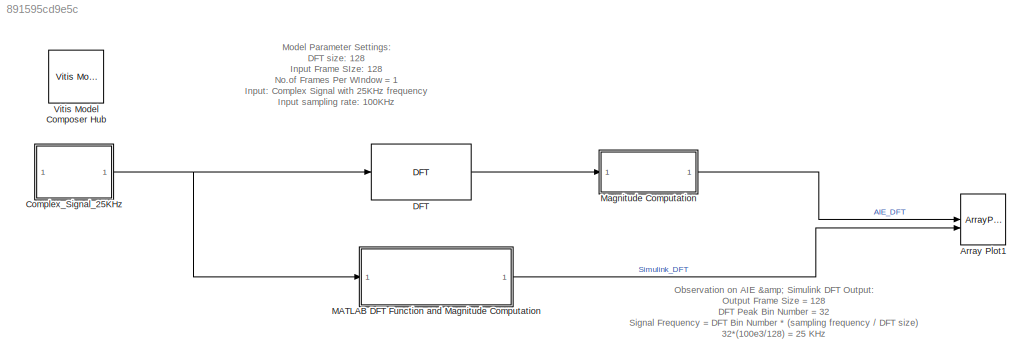
MODEL slx_891595cd9e5c
KIND model
CONFIG AbsTol = auto
CONFIG EnableMultiTasking = off
CONFIG FixedStep = auto
CONFIG MaxStep = auto
CONFIG MinStep = auto
CONFIG RelTol = 1e-3
CONFIG SampleTimeConstraint = Unconstrained
CONFIG SolverName = VariableStepAuto
CONFIG StartTime = 0.0
CONFIG StopTime = 0.5
BLOCK [ArrayPlot] Array Plot1
  GraphicalSettings = {"Style":{"BackgroundColor":[0.15686274509803921,0.15686274509803921,0.15686274509803921],"AxesColor":[0,0,0],"LabelsColor":[0.68627450980392157,0.68627450980392157,0.68627450980392157],"LineStyle":["-","-"],"LineColor":[[1,0.41176470588235292,0.16078431372549021],[0,1,0]],"LineWidth":[1.5,1.5],"Marker":[".","."],"FontSize":"small"},"Cursors":{"Enabled":false,"XLocation":[2,8],"SnapToData":false,"...<+366ch>
  NumInputPorts = 2
  ShowLegend = on
  WasSavedAsWebScope = on
  WindowPosition = [5.000000,41.000000,1272.000000,651.000000,]
  YLimits = [-159.5,1435.5]
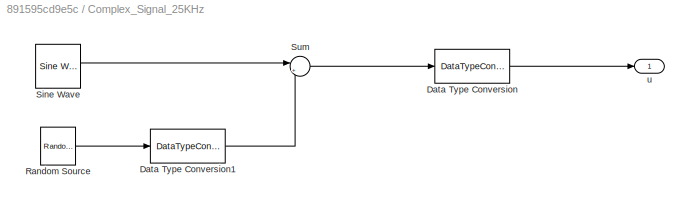
BLOCK [SubSystem] Complex_Signal_25KHz
BLOCK [DataTypeConversion] Complex_Signal_25KHz/Data Type Conversion
  OutDataTypeStr = int16
  RndMeth = Floor
  SaturateOnIntegerOverflow = off
BLOCK [DataTypeConversion] Complex_Signal_25KHz/Data Type Conversion1
  OutDataTypeStr = fixdt(1,16,10)
  RndMeth = Floor
  SaturateOnIntegerOverflow = off
BLOCK [Reference] Complex_Signal_25KHz/Random Source  REF=dspobslib/Random
Source
  SourceBlock = dspobslib/Random\nSource
  SourceType = Random Source Obsolete
  UserDataPersistent = on
BLOCK [Reference] Complex_Signal_25KHz/Sine Wave  REF=dspsrcs4/Sine Wave
  SourceBlock = dspsrcs4/Sine Wave
  SourceType = Sine Wave
BLOCK [Sum] Complex_Signal_25KHz/Sum
  Inputs = |++
BLOCK [Outport] Complex_Signal_25KHz/u
BLOCK [Reference] DFT  REF=aieDSP/DFT
  SourceBlock = aieDSP/DFT
  SourceType = DFT
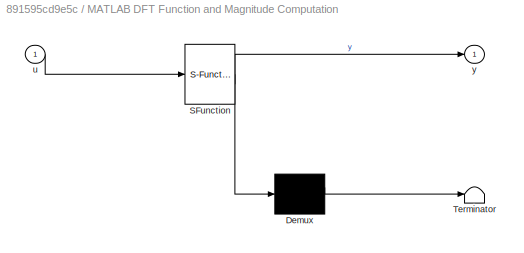
BLOCK [SubSystem] MATLAB DFT Function and Magnitude Computation
  ErrorFcn = Stateflow.Translate.translate
  PermitHierarchicalResolution = ExplicitOnly
  SFBlockType = MATLAB Function
  TreatAsAtomicUnit = on
BLOCK [Demux] MATLAB DFT Function and Magnitude Computation/ Demux 
  Outputs = 1
BLOCK [S-Function] MATLAB DFT Function and Magnitude Computation/ SFunction 
  EnableBusSupport = off
  FunctionName = sf_sfun
  PortCounts = [1 2]
  SFcnIsStateOwnerBlock = off
  SFunctionDeploymentMode = off
  Tag = Stateflow S-Function 2
BLOCK [Terminator] MATLAB DFT Function and Magnitude Computation/ Terminator 
BLOCK [Inport] MATLAB DFT Function and Magnitude Computation/u
BLOCK [Outport] MATLAB DFT Function and Magnitude Computation/y
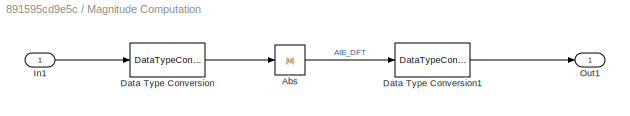
BLOCK [SubSystem] Magnitude Computation
BLOCK [Abs] Magnitude Computation/Abs
  SaturateOnIntegerOverflow = off
BLOCK [DataTypeConversion] Magnitude Computation/Data Type Conversion
  OutDataTypeStr = single
  RndMeth = Floor
  SaturateOnIntegerOverflow = off
BLOCK [DataTypeConversion] Magnitude Computation/Data Type Conversion1
  OutDataTypeStr = int16
  RndMeth = Floor
  SaturateOnIntegerOverflow = off
BLOCK [Inport] Magnitude Computation/In1
BLOCK [Outport] Magnitude Computation/Out1
BLOCK [Reference] Vitis Model Composer Hub  REF=vmcUtilities/Vitis Model Composer Hub
  SourceBlock = vmcUtilities/Vitis Model Composer Hub
  SourceType = VMC Hub
  Tag = genX
  UserDataPersistent = on
ANNOTATION (root): Model Parameter Settings: DFT size: 128 Input Frame SIze: 128 No.of Frames Per WIndow = 1 Input: Complex Signal with 25KHz frequency Input sampling rate: 100KHz
ANNOTATION (root): Observation on AIE & Simulink DFT Output: Output Frame Size = 128 DFT Peak Bin Number = 32 Signal Frequency = DFT Bin Number * (sampling frequency / DFT size) 32*(100e3/128) = 25 KHz
LINE Complex_Signal_25KHz/Data Type Conversion1:1 -> Complex_Signal_25KHz/Sum:2
LINE Complex_Signal_25KHz/Data Type Conversion:1 -> Complex_Signal_25KHz/u:1
LINE Complex_Signal_25KHz/Random Source:1 -> Complex_Signal_25KHz/Data Type Conversion1:1
LINE Complex_Signal_25KHz/Sine Wave:1 -> Complex_Signal_25KHz/Sum:1
LINE Complex_Signal_25KHz/Sum:1 -> Complex_Signal_25KHz/Data Type Conversion:1
NET Complex_Signal_25KHz:1 -> DFT:1, MATLAB DFT Function and Magnitude Computation:1
LINE DFT:1 -> Magnitude Computation:1
LINE MATLAB DFT Function and Magnitude Computation:1 -> Array Plot1:2
LINE Magnitude Computation/Abs:1 -> Magnitude Computation/Data Type Conversion1:1
LINE Magnitude Computation/Data Type Conversion1:1 -> Magnitude Computation/Out1:1
LINE Magnitude Computation/Data Type Conversion:1 -> Magnitude Computation/Abs:1
LINE Magnitude Computation/In1:1 -> Magnitude Computation/Data Type Conversion:1
LINE Magnitude Computation:1 -> Array Plot1:1
note: NET lines group one-source signal fan-out (src -> all destinations, sorted); 1:1 wires keep LINE
CHART MATLAB DFT Function and Magnitude Computation states=1 transitions=1
  STATE_LABEL 'eML_blk_kernel()'
  STATE_LABEL 'SCRIPT:\nfunction y = fcn(u)\nDFT_Size = 128;\nu = single(u);\nX = single(complex(zeros(DFT_Size,1)));\nfor k = 0:DFT_Size-1\n    for n = 0:DFT_Size-1\n        X(k+1) = X(k+1) + u(n+1)*exp(-1i*2*pi*n*k/DFT_Size);\n    end\nend\n\ny = int16(abs(X)); \n'
CHART  states=0 transitions=0
